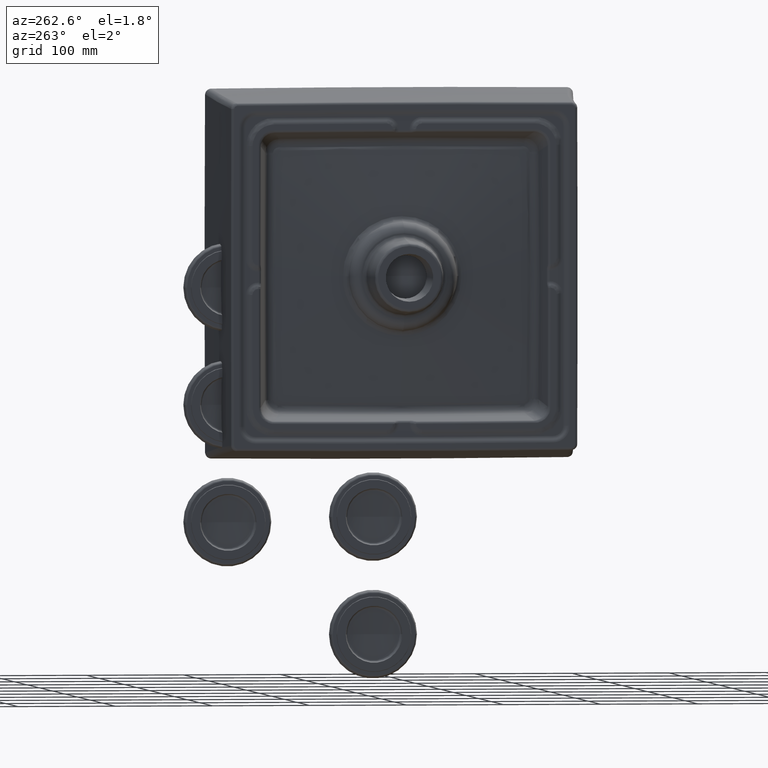
[diagram: clean part render]
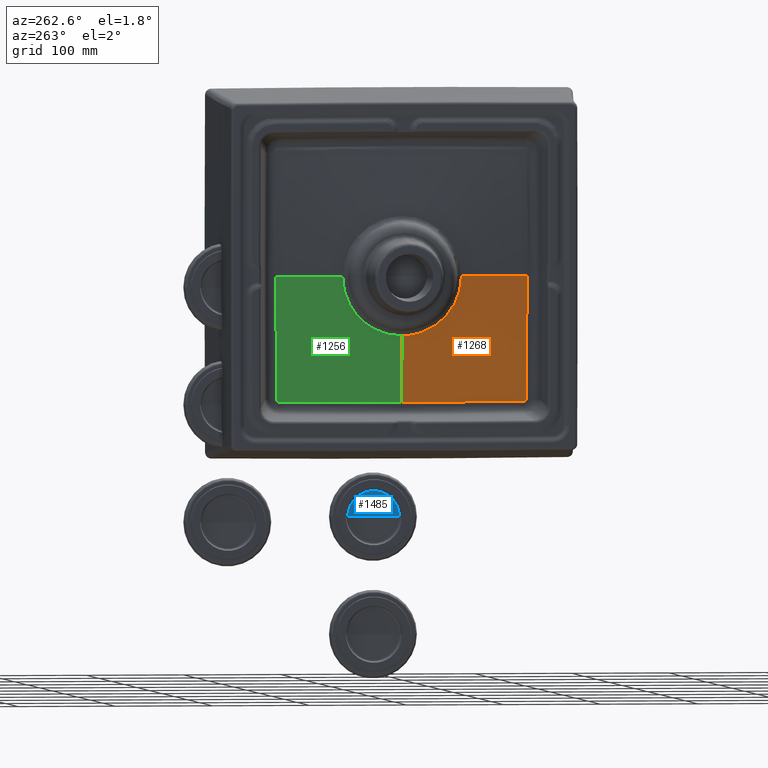
[diagram: same view with three faces highlighted in distinct colors, each labeled with its STEP entity id]
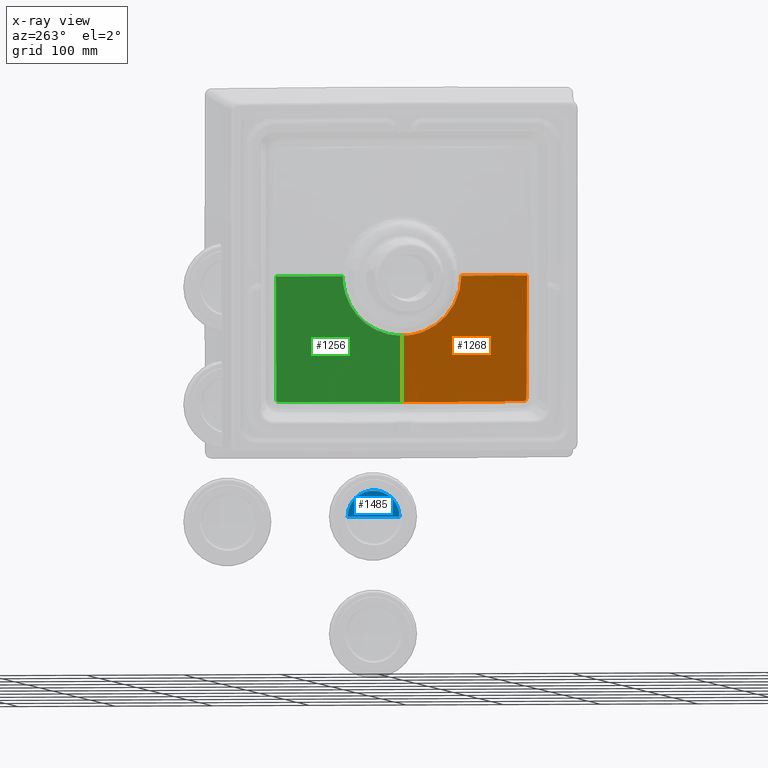
[diagram: x-ray of the same camera — body ghosted, the three highlighted faces saturated]
A machine part, auxiliary view with three faces highlighted in distinct colors.
The next image is the same camera in x-ray (body ghosted, the three faces saturated) — at least one of them is partly hidden behind the body in this view.
Their STEP definitions:

[orange] entity #1268 — the highlighted face is a freeform B-spline surface patch.
#193=B_SPLINE_SURFACE_WITH_KNOTS('',3,3,((#15323,#15324,#15325,#15326,#15327,
#15328,#15329),(#15330,#15331,#15332,#15333,#15334,#15335,#15336),(#15337,
#15338,#15339,#15340,#15341,#15342,#15343),(#15344,#15345,#15346,#15347,
#15348,#15349,#15350),(#15351,#15352,#15353,#15354,#15355,#15356,#15357),
(#15358,#15359,#15360,#15361,#15362,#15363,#15364),(#15365,#15366,#15367,
#15368,#15369,#15370,#15371),(#15372,#15373,#15374,#15375,#15376,#15377,
#15378),(#15379,#15380,#15381,#15382,#15383,#15384,#15385),(#15386,#15387,
#15388,#15389,#15390,#15391,#15392),(#15393,#15394,#15395,#15396,#15397,
#15398,#15399),(#15400,#15401,#15402,#15403,#15404,#15405,#15406),(#15407,
#15408,#15409,#15410,#15411,#15412,#15413),(#15414,#15415,#15416,#15417,
#15418,#15419,#15420),(#15421,#15422,#15423,#15424,#15425,#15426,#15427),
(#15428,#15429,#15430,#15431,#15432,#15433,#15434),(#15435,#15436,#15437,
#15438,#15439,#15440,#15441)),.UNSPECIFIED.,.F.,.F.,.F.,(4,1,1,1,1,1,1,
1,1,1,1,1,1,1,4),(4,1,1,1,4),(0.,0.125,0.1875,0.25,0.3125,0.375,0.4375,
0.5,0.5625,0.625,0.6875,0.75,0.8125,0.875,1.),(0.,0.0781348639985845,0.264745021258988,
0.637965335779795,1.),.UNSPECIFIED.);
#494=LINE('',#14064,#568);
#498=LINE('',#15213,#572);
#568=VECTOR('',#8252,1.);
#572=VECTOR('',#8266,1.);
#862=B_SPLINE_CURVE_WITH_KNOTS('',3,(#15029,#15030,#15031,#15032,#15033,
#15034,#15035,#15036,#15037,#15038,#15039,#15040,#15041,#15042,#15043,#15044,
#15045,#15046,#15047,#15048,#15049,#15050,#15051),.UNSPECIFIED.,.F.,.F.,
(4,2,2,2,2,2,2,1,2,2,2,4),(0.,0.125000000000001,0.187500000000001,0.250000000000001,
0.375000000000002,0.437500000000003,0.468750000000002,0.484375000000003,
0.492187500000002,0.500000000000002,0.750000000000001,1.),.UNSPECIFIED.);
#864=B_SPLINE_CURVE_WITH_KNOTS('',3,(#15077,#15078,#15079,#15080,#15081,
#15082,#15083,#15084,#15085,#15086,#15087,#15088),.UNSPECIFIED.,.F.,.F.,
(4,2,2,2,2,4),(0.,0.250000000000018,0.375000000000022,0.500000000000026,
0.750000000000013,1.),.UNSPECIFIED.);
#866=B_SPLINE_CURVE_WITH_KNOTS('',3,(#15170,#15171,#15172,#15173,#15174,
#15175,#15176,#15177,#15178,#15179,#15180,#15181,#15182,#15183,#15184,#15185,
#15186,#15187,#15188,#15189,#15190,#15191,#15192),.UNSPECIFIED.,.F.,.F.,
(4,2,2,2,2,1,2,2,2,2,2,4),(0.,0.250000000000004,0.375000000000007,0.437500000000008,
0.468750000000008,0.484375000000008,0.492187500000008,0.500000000000008,
0.625000000000006,0.687500000000005,0.750000000000004,1.),.UNSPECIFIED.);
#867=B_SPLINE_CURVE_WITH_KNOTS('',3,(#15215,#15216,#15217,#15218,#15219,
#15220,#15221,#15222,#15223,#15224,#15225,#15226,#15227,#15228,#15229,#15230,
#15231,#15232,#15233,#15234,#15235,#15236,#15237,#15238,#15239,#15240,#15241,
#15242,#15243,#15244,#15245,#15246,#15247,#15248,#15249,#15250,#15251,#15252,
#15253,#15254,#15255,#15256,#15257,#15258,#15259,#15260,#15261,#15262,#15263,
#15264,#15265,#15266,#15267,#15268,#15269,#15270,#15271,#15272,#15273,#15274,
#15275,#15276,#15277,#15278,#15279,#15280,#15281,#15282,#15283,#15284,#15285,
#15286,#15287,#15288,#15289,#15290,#15291,#15292,#15293,#15294,#15295,#15296,
#15297,#15298,#15299,#15300,#15301,#15302,#15303,#15304,#15305,#15306,#15307,
#15308,#15309,#15310,#15311,#15312,#15313,#15314,#15315,#15316,#15317,#15318,
#15319,#15320,#15321,#15322),.UNSPECIFIED.,.F.,.F.,(4,2,2,2,2,2,2,2,1,2,
2,2,2,2,2,2,2,2,2,2,2,1,2,2,2,2,2,2,2,2,2,2,2,2,2,2,2,2,2,1,2,2,2,2,2,2,
2,1,2,2,2,2,2,2,2,4),(0.,0.0625000000000009,0.0937500000000013,0.109375000000002,
0.117187500000002,0.125000000000002,0.156250000000002,0.171875000000003,
0.179687500000003,0.183593750000003,0.187500000000003,0.218750000000003,
0.234375000000003,0.242187500000003,0.250000000000003,0.281250000000003,
0.296875000000003,0.304687500000003,0.312500000000004,0.343750000000004,
0.359375000000004,0.367187500000004,0.371093750000004,0.375000000000005,
0.406250000000006,0.421875000000007,0.429687500000007,0.437500000000008,
0.500000000000009,0.53125000000001,0.54687500000001,0.55468750000001,0.56250000000001,
0.59375000000001,0.60937500000001,0.617187500000009,0.625000000000009,0.656250000000009,
0.671875000000008,0.679687500000008,0.683593750000008,0.687500000000008,
0.703125000000008,0.710937500000008,0.718750000000008,0.734375000000007,
0.742187500000007,0.746093750000007,0.748046875000007,0.750000000000007,
0.812500000000005,0.843750000000004,0.859375000000004,0.867187500000004,
0.875000000000003,1.),.UNSPECIFIED.);
#1268=ADVANCED_FACE('',(#1855),#193,.T.);
#1855=FACE_OUTER_BOUND('',#2303,.T.);
#2303=EDGE_LOOP('',(#3369,#3370,#3371,#3372,#3373,#3374));
#3369=ORIENTED_EDGE('',*,*,#5716,.F.);
#3370=ORIENTED_EDGE('',*,*,#5740,.T.);
#3371=ORIENTED_EDGE('',*,*,#5738,.T.);
#3372=ORIENTED_EDGE('',*,*,#5736,.T.);
#3373=ORIENTED_EDGE('',*,*,#5741,.T.);
#3374=ORIENTED_EDGE('',*,*,#5742,.T.);
#4949=VERTEX_POINT('',#14018);
#4951=VERTEX_POINT('',#14065);
#4961=VERTEX_POINT('',#15004);
#4962=VERTEX_POINT('',#15052);
#4963=VERTEX_POINT('',#15089);
#4964=VERTEX_POINT('',#15214);
#5716=EDGE_CURVE('',#4949,#4951,#494,.T.);
#5736=EDGE_CURVE('',#4962,#4961,#862,.T.);
#5738=EDGE_CURVE('',#4963,#4962,#864,.T.);
#5740=EDGE_CURVE('',#4949,#4963,#866,.T.);
#5741=EDGE_CURVE('',#4961,#4964,#498,.T.);
#5742=EDGE_CURVE('',#4964,#4951,#867,.T.);
#8252=DIRECTION('',(0.997683692681534,-0.0680238881374596,2.36368224960117E-010));
#8266=DIRECTION('',(-1.19636165809E-008,-0.0680238256960799,0.997683696938899));
#14018=CARTESIAN_POINT('',(-129.2041089773,23.54289351853,-1.492666761973E-007));
#14064=CARTESIAN_POINT('',(-110.471292410952,22.2656369891836,-2.53169894867968E-008));
#14065=CARTESIAN_POINT('',(-61.14936515815,18.90277730086,-6.540668661689E-012));
#15004=CARTESIAN_POINT('',(8.160738027421E-007,23.54287030803,-129.2041176624));
#15029=CARTESIAN_POINT('',(-123.998309175867,25.4494889271911,-128.813740244301));
#15030=CARTESIAN_POINT('',(-118.738650716854,25.2418703407142,-128.831293031154));
#15031=CARTESIAN_POINT('',(-113.515510775972,25.0530663831551,-128.86176863469));
#15032=CARTESIAN_POINT('',(-105.749254354044,24.7990120007849,-128.897304862689));
#15033=CARTESIAN_POINT('',(-103.172017560712,24.7192002927077,-128.906636850611));
#15034=CARTESIAN_POINT('',(-98.0424833767621,24.5693645635275,-128.924698205715));
#15035=CARTESIAN_POINT('',(-95.4374098163264,24.4979841847432,-128.933890216336));
#15036=CARTESIAN_POINT('',(-87.9791011381079,24.3066773863639,-128.969281734964));
#15037=CARTESIAN_POINT('',(-82.9028062030024,24.1938353240872,-128.999755579331));
#15038=CARTESIAN_POINT('',(-75.1404653583327,24.0468081645861,-129.034316026062));
#15039=CARTESIAN_POINT('',(-72.5279778405106,24.0014918215913,-129.044591872007));
#15040=CARTESIAN_POINT('',(-68.5726750103773,23.9390106796624,-129.059813641965));
#15041=CARTESIAN_POINT('',(-67.2480786923786,23.919098221286,-129.064840398804));
#15042=CARTESIAN_POINT('',(-65.2514627008223,23.8905866248061,-129.072384944221));
#15043=CARTESIAN_POINT('',(-64.250724430076,23.8766700534104,-129.076160438722));
#15044=CARTESIAN_POINT('',(-63.2462524840858,23.8632591188045,-129.079974533944));
#15045=CARTESIAN_POINT('',(-62.5757651499783,23.8544304725721,-129.082530998082));
#15046=CARTESIAN_POINT('',(-62.1953237461664,23.849498897937,-129.083988526621));
#15047=CARTESIAN_POINT('',(-52.5821002589686,23.7264319641183,-129.1210200709));
#15048=CARTESIAN_POINT('',(-42.8857124058192,23.6478571665887,-129.136754986282));
#15049=CARTESIAN_POINT('',(-22.4115636500975,23.5558191170307,-129.177895308486));
#15050=CARTESIAN_POINT('',(-11.6284164271326,23.542872158216,-129.204074890052));
#15051=CARTESIAN_POINT('',(1.71553299383955E-014,23.5428750524567,-129.204117338916));
#15052=CARTESIAN_POINT('',(-123.9983091195,25.44949035023,-128.8137401862));
#15077=CARTESIAN_POINT('',(-128.675361975935,25.4616570055894,-124.157117524426));
#15078=CARTESIAN_POINT('',(-128.669582215087,25.4938396295691,-125.028809718736));
#15079=CARTESIAN_POINT('',(-128.605305549557,25.5190556669247,-125.769579379898));
#15080=CARTESIAN_POINT('',(-128.41934529131,25.5479807448387,-126.733915729918));
#15081=CARTESIAN_POINT('',(-128.357832822342,25.5548229495542,-126.979894221398));
#15082=CARTESIAN_POINT('',(-128.143767959985,25.5691446030683,-127.583552479931));
#15083=CARTESIAN_POINT('',(-128.04404202234,25.5737392229814,-127.808818294213));
#15084=CARTESIAN_POINT('',(-127.54534003317,25.573679760562,-128.337698062424));
#15085=CARTESIAN_POINT('',(-126.951765777905,25.5554081715522,-128.493216046515));
#15086=CARTESIAN_POINT('',(-125.657280772601,25.5128275590314,-128.743822767268));
#15087=CARTESIAN_POINT('',(-124.888055680051,25.4846089797952,-128.810731684767));
#15088=CARTESIAN_POINT('',(-123.998309175867,25.4494889271911,-128.813740244301));
#15089=CARTESIAN_POINT('',(-128.6753626393,25.46164167569,-124.1571180948));
#15170=CARTESIAN_POINT('',(-129.204110269216,23.5428745704317,-1.49266679086851E-007));
#15171=CARTESIAN_POINT('',(-129.204160881944,23.5428780215863,-11.6599699269367));
#15172=CARTESIAN_POINT('',(-129.175428481155,23.5750456398596,-22.4661338570689));
#15173=CARTESIAN_POINT('',(-129.138910417021,23.6710085139017,-37.8481373533838));
#15174=CARTESIAN_POINT('',(-129.127184297727,23.7109460119658,-42.8363944254641));
#15175=CARTESIAN_POINT('',(-129.106692190943,23.7827538241014,-50.1493035276718));
#15176=CARTESIAN_POINT('',(-129.099125103895,23.8086744925741,-52.5584220802422));
#15177=CARTESIAN_POINT('',(-129.08658039861,23.8505357695891,-56.1333135166864));
#15178=CARTESIAN_POINT('',(-129.082233709899,23.864986151004,-57.31849699022));
#15179=CARTESIAN_POINT('',(-129.07521881547,23.8874090567091,-59.086813963976));
#15180=CARTESIAN_POINT('',(-129.071587880053,23.8988073493684,-59.9686071201746));
#15181=CARTESIAN_POINT('',(-129.067736374875,23.9104863616266,-60.8468924758026));
#15182=CARTESIAN_POINT('',(-129.065116719783,23.918334802615,-61.4316411903759));
#15183=CARTESIAN_POINT('',(-129.063990092035,23.9216783467855,-61.6788717948925));
#15184=CARTESIAN_POINT('',(-129.037258121641,23.9998540605586,-67.3969604025564));
#15185=CARTESIAN_POINT('',(-129.013766350533,24.0850412710948,-72.6719878997851));
#15186=CARTESIAN_POINT('',(-128.970134507269,24.2306097243252,-80.438678815544));
#15187=CARTESIAN_POINT('',(-128.954048557338,24.2821067342563,-83.0023913673381));
#15188=CARTESIAN_POINT('',(-128.919940452974,24.3911343143178,-88.0796617497526));
#15189=CARTESIAN_POINT('',(-128.902121737546,24.4473836250668,-90.5414755984068));
#15190=CARTESIAN_POINT('',(-128.819815751502,24.7568198602366,-103.239065917616));
#15191=CARTESIAN_POINT('',(-128.746992201101,25.0727592580888,-113.621431549697));
#15192=CARTESIAN_POINT('',(-128.675361975935,25.4616570055894,-124.157117524426));
#15213=CARTESIAN_POINT('',(8.160738027421E-007,23.54287030803,-129.2041176624));
#15214=CARTESIAN_POINT('',(2.56854969141E-012,18.90277782304,-61.14936512254));
#15215=CARTESIAN_POINT('',(1.2209212320652E-014,18.9027783081714,-61.1493650894629));
#15216=CARTESIAN_POINT('',(-1.89202177800325,18.9027710424781,-61.1492585259609));
#15217=CARTESIAN_POINT('',(-3.84559544877732,18.9008279023936,-61.0609811108095));
#15218=CARTESIAN_POINT('',(-6.8481874819641,18.8951456682172,-60.7736376534429));
#15219=CARTESIAN_POINT('',(-7.86103905887691,18.8927916315554,-60.6520149157375));
#15220=CARTESIAN_POINT('',(-9.39529820682029,18.8885993724952,-60.427815555223));
#15221=CARTESIAN_POINT('',(-9.90921134733114,18.8870918334936,-60.3461204645753));
#15222=CARTESIAN_POINT('',(-10.6834134552263,18.8846696626458,-60.2127502718086));
#15223=CARTESIAN_POINT('',(-10.9420359912187,18.8838354669649,-60.1664888872459));
#15224=CARTESIAN_POINT('',(-11.4603206056289,18.8821142436491,-60.0702920098491));
#15225=CARTESIAN_POINT('',(-11.7537436297632,18.8811087249832,-60.0136333883391));
#15226=CARTESIAN_POINT('',(-12.8856663651366,18.877136007077,-59.7882231876972));
#15227=CARTESIAN_POINT('',(-13.8276853031871,18.8735390884318,-59.5792656401778));
#15228=CARTESIAN_POINT('',(-15.2912158493528,18.8675366701749,-59.2152044770804));
#15229=CARTESIAN_POINT('',(-15.7874662377693,18.8654348703624,-59.0854056068563));
#15230=CARTESIAN_POINT('',(-16.5438270925663,18.8621350561224,-58.8770114953867));
#15231=CARTESIAN_POINT('',(-16.9250027692566,18.8604483895394,-58.7693897885659));
#15232=CARTESIAN_POINT('',(-17.3105441486263,18.8587075832438,-58.6564320858475));
#15233=CARTESIAN_POINT('',(-17.5685270456755,18.8575351385412,-58.5799186344751));
#15234=CARTESIAN_POINT('',(-17.7312714763167,18.8567898071111,-58.5309485329577));
#15235=CARTESIAN_POINT('',(-18.6012473183856,18.8527856026352,-58.2666445897006));
#15236=CARTESIAN_POINT('',(-19.4641365830383,18.8486673473141,-57.9878249433266));
#15237=CARTESIAN_POINT('',(-20.8843091474251,18.8416861358379,-57.4865454390048));
#15238=CARTESIAN_POINT('',(-21.3786404803298,18.8392254657991,-57.3055678390004));
#15239=CARTESIAN_POINT('',(-22.1501515725222,18.8353425136129,-57.0107319171594));
#15240=CARTESIAN_POINT('',(-22.4123217865777,18.8340162378999,-56.9085556228797));
#15241=CARTESIAN_POINT('',(-22.9463974411717,18.8313016064167,-56.6959509723167));
#15242=CARTESIAN_POINT('',(-23.2629900325091,18.8296841324015,-56.5669786712532));
#15243=CARTESIAN_POINT('',(-24.4227019612674,18.8237381174836,-56.0857294250386));
#15244=CARTESIAN_POINT('',(-25.3512068474641,18.818950886789,-55.6733147159994));
#15245=CARTESIAN_POINT('',(-26.6911696118953,18.8120264337842,-55.0376503655113));
#15246=CARTESIAN_POINT('',(-27.1386241192828,18.8097339907333,-54.8189413894887));
#15247=CARTESIAN_POINT('',(-27.810596899884,18.8063240366658,-54.4801834385104));
#15248=CARTESIAN_POINT('',(-28.0347194370456,18.8051921736333,-54.3654816189762));
#15249=CARTESIAN_POINT('',(-28.4831567552797,18.8029389214631,-54.1324347343445));
#15250=CARTESIAN_POINT('',(-28.6765188590226,18.8019714428934,-54.0306722238945));
#15251=CARTESIAN_POINT('',(-29.9531546649729,18.7956234380558,-53.3467287081956));
#15252=CARTESIAN_POINT('',(-30.8911164050713,18.7911415312198,-52.8074119955594));
#15253=CARTESIAN_POINT('',(-32.1806951283769,18.7852691508241,-52.0257994125856));
#15254=CARTESIAN_POINT('',(-32.5910071810463,18.7834532745137,-51.7698089497498));
#15255=CARTESIAN_POINT('',(-33.1781866456384,18.7809352477523,-51.39445571112));
#15256=CARTESIAN_POINT('',(-33.4647046685738,18.7797276735674,-51.2089356102118));
#15257=CARTESIAN_POINT('',(-33.7408109966203,18.7785959692101,-51.0269748865108));
#15258=CARTESIAN_POINT('',(-33.9225899508107,18.777858213936,-50.9064936775656));
#15259=CARTESIAN_POINT('',(-33.9879923048431,18.7775944545639,-50.8629828091874));
#15260=CARTESIAN_POINT('',(-35.0045383546011,18.7735534808973,-50.1815568912249));
#15261=CARTESIAN_POINT('',(-35.8596115842043,18.7705218838466,-49.573495355509));
#15262=CARTESIAN_POINT('',(-37.0727642265064,18.7667736086999,-48.6659851207649));
#15263=CARTESIAN_POINT('',(-37.4655852726327,18.7656574127479,-48.364239241551));
#15264=CARTESIAN_POINT('',(-38.0379867475977,18.7641781472384,-47.9137130767636));
#15265=CARTESIAN_POINT('',(-38.2259828095383,18.7637175659292,-47.763886060235));
#15266=CARTESIAN_POINT('',(-38.5964582026721,18.762860643988,-47.4650832865852));
#15267=CARTESIAN_POINT('',(-38.7541335135935,18.7625146196128,-47.3365931056822));
#15268=CARTESIAN_POINT('',(-40.5952894588006,18.7587803755279,-45.8159534721037));
#15269=CARTESIAN_POINT('',(-42.0870353322361,18.7578349486657,-44.4395878993229));
#15270=CARTESIAN_POINT('',(-44.1370433012557,18.759598550178,-42.3703437918351));
#15271=CARTESIAN_POINT('',(-44.8193032544021,18.760737557214,-41.6491240512869));
#15272=CARTESIAN_POINT('',(-45.8360338475655,18.7632475336096,-40.5182112318674));
#15273=CARTESIAN_POINT('',(-46.1738256214384,18.7642176757564,-40.1330638149455));
#15274=CARTESIAN_POINT('',(-46.6781222973077,18.7658689918021,-39.5428870596131));
#15275=CARTESIAN_POINT('',(-46.8458220856594,18.7664521069314,-39.3440858768608));
#15276=CARTESIAN_POINT('',(-47.1802970301252,18.7676829091281,-38.9423049235958));
#15277=CARTESIAN_POINT('',(-47.3669050115413,18.7684116574159,-38.7148566632431));
#15278=CARTESIAN_POINT('',(-48.0989939635824,18.7714042198221,-37.8117909621835));
#15279=CARTESIAN_POINT('',(-48.6919915251018,18.7742547066509,-37.0464199612636));
#15280=CARTESIAN_POINT('',(-49.5851058294341,18.7791978576711,-35.8298629447103));
#15281=CARTESIAN_POINT('',(-49.8834074082226,18.7809566800812,-35.4129348374617));
#15282=CARTESIAN_POINT('',(-50.3307793657708,18.7837580597641,-34.7699991752914));
#15283=CARTESIAN_POINT('',(-50.479889581916,18.7847190336208,-34.5527640554882));
#15284=CARTESIAN_POINT('',(-50.7779155582789,18.7866946244062,-34.1123847103453));
#15285=CARTESIAN_POINT('',(-50.9577256557417,18.7879254673334,-33.8422705444441));
#15286=CARTESIAN_POINT('',(-51.5469309635364,18.7920497871241,-32.9464700696579));
#15287=CARTESIAN_POINT('',(-52.0431002434051,18.7958176411273,-32.1600126257232));
#15288=CARTESIAN_POINT('',(-52.8112779044613,18.8021558444635,-30.8678664330162));
#15289=CARTESIAN_POINT('',(-53.0713082905006,18.804382865744,-30.4184095480132));
#15290=CARTESIAN_POINT('',(-53.4655207525132,18.8078915331016,-29.7151977557972));
#15291=CARTESIAN_POINT('',(-53.6636674856496,18.8096878855749,-29.3563360845718));
#15292=CARTESIAN_POINT('',(-53.8630293637104,18.8115464992112,-28.9864289825226));
#15293=CARTESIAN_POINT('',(-53.9961680070469,18.8127993194633,-28.7373520957653));
#15294=CARTESIAN_POINT('',(-54.0869687734057,18.8136637770696,-28.5657056832261));
#15295=CARTESIAN_POINT('',(-54.3002837970261,18.8157085583942,-28.1599581249398));
#15296=CARTESIAN_POINT('',(-54.4994511763781,18.8176562752205,-27.7744085694549));
#15297=CARTESIAN_POINT('',(-54.8351613345343,18.8210387809439,-27.1014414973042));
#15298=CARTESIAN_POINT('',(-54.9532064450857,18.8222430745161,-26.8613370354402));
#15299=CARTESIAN_POINT('',(-55.2003981195176,18.8248036837147,-26.3489416856826));
#15300=CARTESIAN_POINT('',(-55.3123411189353,18.8259762854139,-26.1137066799734));
#15301=CARTESIAN_POINT('',(-55.7660637969081,18.8308215914027,-25.1363847846583));
#15302=CARTESIAN_POINT('',(-56.0118558003654,18.8335466750719,-24.577041761287));
#15303=CARTESIAN_POINT('',(-56.3086275106225,18.8368923770332,-23.8835491502351));
#15304=CARTESIAN_POINT('',(-56.3955143880229,18.8378839289059,-23.6766037111834));
#15305=CARTESIAN_POINT('',(-56.5089779580817,18.8391873481637,-23.4031296909325));
#15306=CARTESIAN_POINT('',(-56.5614883530573,18.8397930768554,-23.2756258958062));
#15307=CARTESIAN_POINT('',(-56.6078479393594,18.8403300928891,-23.1620635341132));
#15308=CARTESIAN_POINT('',(-56.6374048069227,18.8406728591885,-23.0894620286959));
#15309=CARTESIAN_POINT('',(-56.6375973512527,18.8406749624351,-23.0890749919798));
#15310=CARTESIAN_POINT('',(-57.5401018033618,18.8511626550294,-20.8599224800499));
#15311=CARTESIAN_POINT('',(-58.2306803788788,18.8599583298811,-18.7914932860299));
#15312=CARTESIAN_POINT('',(-59.0617107514661,18.8711608826243,-15.8781415657663));
#15313=CARTESIAN_POINT('',(-59.3043880376425,18.874563608955,-14.9383273489363));
#15314=CARTESIAN_POINT('',(-59.6244904572532,18.8791813092249,-13.579923727183));
#15315=CARTESIAN_POINT('',(-59.7238651391988,18.8806394836998,-13.1356652860149));
#15316=CARTESIAN_POINT('',(-59.8628207744046,18.8827065376374,-12.4825512459882));
#15317=CARTESIAN_POINT('',(-59.9074544669367,18.8833755210207,-12.267058271554));
#15318=CARTESIAN_POINT('',(-59.9934937682133,18.884673649433,-11.8405657432891));
#15319=CARTESIAN_POINT('',(-60.0271753647885,18.8851847169946,-11.6700113563442));
#15320=CARTESIAN_POINT('',(-60.836105242619,18.8975510106159,-7.43420144258678));
#15321=CARTESIAN_POINT('',(-61.1491475929925,18.9027634788666,-3.78533501289447));
#15322=CARTESIAN_POINT('',(-61.1493650894696,18.9027783081719,1.72205492865916E-014));
#15323=CARTESIAN_POINT('',(1.208589932638E-014,18.78331224954,-59.39719622956));
#15324=CARTESIAN_POINT('',(1.227275760902E-014,18.964712032,-62.05772637226));
#15325=CARTESIAN_POINT('',(1.291200424398E-014,19.57935045082,-71.07242318162));
#15326=CARTESIAN_POINT('',(1.447943084615E-014,21.06046614237,-92.79545332432));
#15327=CARTESIAN_POINT('',(1.678285450035E-014,23.200690449,-124.1854098215));
#15328=CARTESIAN_POINT('',(1.863157136749E-014,24.90767611926,-149.2211996521));
#15329=CARTESIAN_POINT('',(1.954336519244E-014,25.7481845168,-161.5486561493));
#15330=CARTESIAN_POINT('',(-3.94480997401,18.78331224954,-59.39719622956));
#15331=CARTESIAN_POINT('',(-4.133402904647,18.964712032,-62.05772637226));
#15332=CARTESIAN_POINT('',(-4.773927293065,19.57935045082,-71.07242318162));
#15333=CARTESIAN_POINT('',(-6.32410829849,21.06046614237,-92.79545332432));
#15334=CARTESIAN_POINT('',(-8.573658486577,23.200690449,-124.1854098215));
#15335=CARTESIAN_POINT('',(-10.37070326619,24.90767611926,-149.2211996521));
#15336=CARTESIAN_POINT('',(-11.25592699698,25.7481845168,-161.5486561493));
#15337=CARTESIAN_POINT('',(-9.865357098318,18.77968560482,-58.9210537611));
#15338=CARTESIAN_POINT('',(-10.33766820558,18.96042756014,-61.58225173641));
#15339=CARTESIAN_POINT('',(-11.9413812946,19.57284431688,-70.59870382594));
#15340=CARTESIAN_POINT('',(-15.82088373896,21.04857737469,-92.32373261343));
#15341=CARTESIAN_POINT('',(-21.44816421215,23.18094756705,-123.7134062355));
#15342=CARTESIAN_POINT('',(-25.94277990845,24.88161894013,-148.7480227158));
#15343=CARTESIAN_POINT('',(-28.15673344771,25.71901194108,-161.0747787143));
#15344=CARTESIAN_POINT('',(-17.58458404354,18.77190571877,-57.3056626659));
#15345=CARTESIAN_POINT('',(-18.43887138892,18.95127707692,-59.95515309207));
#15346=CARTESIAN_POINT('',(-21.33806074091,19.5590610624,-68.93096455679));
#15347=CARTESIAN_POINT('',(-28.34504630006,21.02360150226,-90.55364924965));
#15348=CARTESIAN_POINT('',(-38.49992373515,23.13970282414,-121.7890817158));
#15349=CARTESIAN_POINT('',(-46.60829273293,24.82733036925,-146.6987163644));
#15350=CARTESIAN_POINT('',(-50.60197833963,25.65829194183,-158.9636782619));
#15351=CARTESIAN_POINT('',(-23.24126383228,18.76575546308,-55.59638972384));
#15352=CARTESIAN_POINT('',(-24.38358614438,18.94405955812,-58.22478705132));
#15353=CARTESIAN_POINT('',(-28.25895139345,19.54823271025,-67.12848720438));
#15354=CARTESIAN_POINT('',(-37.61943800793,21.00406684561,-88.57444187231));
#15355=CARTESIAN_POINT('',(-51.17693819347,23.10755646113,-119.5502005935));
#15356=CARTESIAN_POINT('',(-61.99977628336,24.78509951565,-144.2513746416));
#15357=CARTESIAN_POINT('',(-67.3301294121,25.61109218838,-156.4135171836));
#15358=CARTESIAN_POINT('',(-28.71542538294,18.76041609949,-53.37276370702));
#15359=CARTESIAN_POINT('',(-30.14564669956,18.93782361144,-55.95963105523));
#15360=CARTESIAN_POINT('',(-34.99605643071,19.5389577411,-64.7222669938));
#15361=CARTESIAN_POINT('',(-46.70414408521,20.98747950208,-85.82669422456));
#15362=CARTESIAN_POINT('',(-63.65108696851,23.08042795045,-116.3066232813));
#15363=CARTESIAN_POINT('',(-77.17638283504,24.74957865091,-140.6116093047));
#15364=CARTESIAN_POINT('',(-83.83729551733,25.57144088617,-152.5785774214));
#15365=CARTESIAN_POINT('',(-33.95017658899,18.75694389448,-50.61117003982));
#15366=CARTESIAN_POINT('',(-35.66357757765,18.93382639331,-53.12442307136));
#15367=CARTESIAN_POINT('',(-41.47237270474,19.53317264452,-61.63780220841));
#15368=CARTESIAN_POINT('',(-55.48471569907,20.97740754167,-82.14244947191));
#15369=CARTESIAN_POINT('',(-75.75374453361,23.06423708255,-111.7569899983));
#15370=CARTESIAN_POINT('',(-91.92623708076,24.72856244454,-135.3722070612));
#15371=CARTESIAN_POINT('',(-99.89030030165,25.54805580723,-146.9995945268));
#15372=CARTESIAN_POINT('',(-38.8660512052,18.75617028263,-47.27431578076));
#15373=CARTESIAN_POINT('',(-40.84760298632,18.93305690519,-49.6671857698));
#15374=CARTESIAN_POINT('',(-47.56321443409,19.5324050061,-57.77362142142));
#15375=CARTESIAN_POINT('',(-63.75269349115,20.97667012986,-77.30203409281));
#15376=CARTESIAN_POINT('',(-87.15607194711,23.06363160116,-105.5122758719));
#15377=CARTESIAN_POINT('',(-105.8248185741,24.72812703096,-128.0094623482));
#15378=CARTESIAN_POINT('',(-115.0175527993,25.5477123728,-139.0865975073));
#15379=CARTESIAN_POINT('',(-43.35128594238,18.75832478778,-43.34207153976));
#15380=CARTESIAN_POINT('',(-45.56670436879,18.93577022744,-45.55572212046));
#15381=CARTESIAN_POINT('',(-53.07268559059,19.53700835933,-53.05667366135));
#15382=CARTESIAN_POINT('',(-71.1577333605,20.98583720016,-71.13383182826));
#15383=CARTESIAN_POINT('',(-97.28739269233,23.07941953816,-97.25811022114));
#15384=CARTESIAN_POINT('',(-118.1266965487,24.7492139374,-118.0949264291));
#15385=CARTESIAN_POINT('',(-128.3876999648,25.57141073746,-128.3549385975));
#15386=CARTESIAN_POINT('',(-47.28540416674,18.7625617903,-38.86122216535));
#15387=CARTESIAN_POINT('',(-49.67957964282,18.9409109295,-40.84116397918));
#15388=CARTESIAN_POINT('',(-57.7897389137,19.54522069743,-47.55218339952));
#15389=CARTESIAN_POINT('',(-77.32401061207,21.00143148774,-63.734436965));
#15390=CARTESIAN_POINT('',(-105.538270695,23.1056171418,-87.13285969011));
#15391=CARTESIAN_POINT('',(-128.0373153115,24.78382167817,-105.7993143883));
#15392=CARTESIAN_POINT('',(-139.1151910919,25.61015372803,-114.9911350255));
#15393=CARTESIAN_POINT('',(-50.62199405252,18.76747276717,-33.95068898617));
#15394=CARTESIAN_POINT('',(-53.1358316006,18.94675513859,-35.66317935612));
#15395=CARTESIAN_POINT('',(-61.65088489666,19.55423824644,-41.46936619781));
#15396=CARTESIAN_POINT('',(-82.15818035839,21.01807234186,-55.47758417612));
#15397=CARTESIAN_POINT('',(-111.7745538685,23.13318970817,-75.74376050859));
#15398=CARTESIAN_POINT('',(-135.3906187995,24.82005108025,-91.91493600163));
#15399=CARTESIAN_POINT('',(-147.0183443298,25.65063776831,-99.8784746175));
#15400=CARTESIAN_POINT('',(-53.38218898961,18.77211333774,-28.7202630113));
#15401=CARTESIAN_POINT('',(-55.96904742899,18.95217368823,-30.15044077201));
#15402=CARTESIAN_POINT('',(-64.73165759562,19.56229664328,-35.00072662077));
#15403=CARTESIAN_POINT('',(-85.83604241046,21.03247811985,-46.70862510687));
#15404=CARTESIAN_POINT('',(-116.315938291,23.15672230784,-63.6554533594));
#15405=CARTESIAN_POINT('',(-140.6209063716,24.85083187456,-77.18070771629));
#15406=CARTESIAN_POINT('',(-152.5878667552,25.68498345981,-83.84160641264));
#15407=CARTESIAN_POINT('',(-55.60374373004,18.77609715534,-23.2486065663));
#15408=CARTESIAN_POINT('',(-58.23181276377,18.95673409523,-24.39162712654));
#15409=CARTESIAN_POINT('',(-67.13457183763,19.56880745235,-28.26899625626));
#15410=CARTESIAN_POINT('',(-88.57903503321,21.04368547862,-37.63266695748));
#15411=CARTESIAN_POINT('',(-119.5537560425,23.17471981418,-51.19239784342));
#15412=CARTESIAN_POINT('',(-144.2544472841,24.87425206401,-62.01628166435));
#15413=CARTESIAN_POINT('',(-156.4163966937,25.71107465649,-67.34705485806));
#15414=CARTESIAN_POINT('',(-57.31055978954,18.77928170257,-17.59260599949));
#15415=CARTESIAN_POINT('',(-59.95966697724,18.96030824249,-18.4480424362));
#15416=CARTESIAN_POINT('',(-68.93438259968,19.57369497448,-21.35052150551));
#15417=CARTESIAN_POINT('',(-90.55533679427,21.05174725719,-28.36271300031));
#15418=CARTESIAN_POINT('',(-121.7895736499,23.18741111576,-38.52120488384));
#15419=CARTESIAN_POINT('',(-146.6986535246,24.89066941862,-46.63125754802));
#15420=CARTESIAN_POINT('',(-158.9633938498,25.72933105042,-50.62561707065));
#15421=CARTESIAN_POINT('',(-58.92268495691,18.78237478046,-9.872050376296));
#15422=CARTESIAN_POINT('',(-61.58366918965,18.96371494159,-10.34559666377));
#15423=CARTESIAN_POINT('',(-70.59951311796,19.57815513682,-11.95283195888));
#15424=CARTESIAN_POINT('',(-92.32358801768,21.05877283051,-15.83787600433));
#15425=CARTESIAN_POINT('',(-123.7126112428,23.19822767549,-21.46895848805));
#15426=CARTESIAN_POINT('',(-148.7469272161,24.90456828664,-25.9653351082));
#15427=CARTESIAN_POINT('',(-161.073563508,25.74475512934,-28.17999113487));
#15428=CARTESIAN_POINT('',(-59.39719622956,18.78331224954,-3.948267161249));
#15429=CARTESIAN_POINT('',(-62.05772637226,18.964712032,-4.137514323041));
#15430=CARTESIAN_POINT('',(-71.07242318162,19.57935045082,-4.779901455345));
#15431=CARTESIAN_POINT('',(-92.79545332432,21.06046614237,-6.333007017693));
#15432=CARTESIAN_POINT('',(-124.1854098215,23.200690449,-8.58455499029));
#15433=CARTESIAN_POINT('',(-149.2211996521,24.90767611926,-10.38252329524));
#15434=CARTESIAN_POINT('',(-161.5486561493,25.7481845168,-11.26811502328));
#15435=CARTESIAN_POINT('',(-59.39719622956,18.78331224954,1.716840078178E-014));
#15436=CARTESIAN_POINT('',(-62.05772637226,18.964712032,1.724719731816E-014));
#15437=CARTESIAN_POINT('',(-71.07242318162,19.57935045082,1.752036266276E-014));
#15438=CARTESIAN_POINT('',(-92.79545332432,21.06046614237,1.820591864479E-014));
#15439=CARTESIAN_POINT('',(-124.1854098215,23.200690449,1.923544268149E-014));
#15440=CARTESIAN_POINT('',(-149.2211996521,24.90767611926,2.006825473294E-014));
#15441=CARTESIAN_POINT('',(-161.5486561493,25.7481845168,2.047983976536E-014));

[blue] entity #1485 — the highlighted spherical surface has radius 192.302 mm.
#115=SPHERICAL_SURFACE('',#7526,192.301587301587);
#1485=ADVANCED_FACE('',(#2065),#115,.F.);
#2065=FACE_OUTER_BOUND('',#2527,.T.);
#2527=EDGE_LOOP('',(#4393,#4394,#4395));
#4393=ORIENTED_EDGE('',*,*,#6243,.F.);
#4394=ORIENTED_EDGE('',*,*,#6242,.T.);
#4395=ORIENTED_EDGE('',*,*,#6238,.T.);
#5257=VERTEX_POINT('',#25132);
#5258=VERTEX_POINT('',#25134);
#5259=VERTEX_POINT('',#25142);
#6238=EDGE_CURVE('',#5258,#5257,#6809,.T.);
#6242=EDGE_CURVE('',#5259,#5258,#6813,.T.);
#6243=EDGE_CURVE('',#5259,#5257,#6814,.T.);
#6809=CIRCLE('',#7516,26.7047300364021);
#6813=CIRCLE('',#7523,192.301587301587);
#6814=CIRCLE('',#7524,192.301587301587);
#7516=AXIS2_PLACEMENT_3D('',#25133,#8939,#8940);
#7523=AXIS2_PLACEMENT_3D('',#25141,#8953,#8954);
#7524=AXIS2_PLACEMENT_3D('',#25143,#8955,#8956);
#7526=AXIS2_PLACEMENT_3D('',#25145,#8959,#8960);
#8939=DIRECTION('',(0.,-1.,0.));
#8940=DIRECTION('',(0.,0.,-1.));
#8953=DIRECTION('',(-1.,0.,0.));
#8954=DIRECTION('',(0.,1.,0.));
#8955=DIRECTION('',(1.,0.,0.));
#8956=DIRECTION('',(0.,1.,0.));
#8959=DIRECTION('',(0.,1.,-5.41250907073242E-017));
#8960=DIRECTION('',(0.,0.,-1.));
#25132=CARTESIAN_POINT('',(-246.89719743439,50.2709505729654,52.025837402982));
#25133=CARTESIAN_POINT('',(-246.89719743439,50.2709505729654,25.3211073665799));
#25134=CARTESIAN_POINT('',(-246.89719743439,50.2709505729654,-1.38362266982229));
#25141=CARTESIAN_POINT('',(-246.89719743439,-140.167380317627,25.3211073665799));
#25142=CARTESIAN_POINT('',(-246.89719743439,52.1342069839601,25.3211073665799));
#25143=CARTESIAN_POINT('',(-246.89719743439,-140.167380317627,25.3211073665799));
#25145=CARTESIAN_POINT('',(-246.89719743439,-140.167380317627,25.3211073665799));

[green] entity #1256 — the highlighted face is a freeform B-spline surface patch.
#184=B_SPLINE_SURFACE_WITH_KNOTS('',3,3,((#14175,#14176,#14177,#14178,#14179,
#14180,#14181,#14182,#14183,#14184,#14185,#14186,#14187,#14188,#14189,#14190,
#14191,#14192,#14193,#14194),(#14195,#14196,#14197,#14198,#14199,#14200,
#14201,#14202,#14203,#14204,#14205,#14206,#14207,#14208,#14209,#14210,#14211,
#14212,#14213,#14214),(#14215,#14216,#14217,#14218,#14219,#14220,#14221,
#14222,#14223,#14224,#14225,#14226,#14227,#14228,#14229,#14230,#14231,#14232,
#14233,#14234),(#14235,#14236,#14237,#14238,#14239,#14240,#14241,#14242,
#14243,#14244,#14245,#14246,#14247,#14248,#14249,#14250,#14251,#14252,#14253,
#14254),(#14255,#14256,#14257,#14258,#14259,#14260,#14261,#14262,#14263,
#14264,#14265,#14266,#14267,#14268,#14269,#14270,#14271,#14272,#14273,#14274),
(#14275,#14276,#14277,#14278,#14279,#14280,#14281,#14282,#14283,#14284,
#14285,#14286,#14287,#14288,#14289,#14290,#14291,#14292,#14293,#14294),
(#14295,#14296,#14297,#14298,#14299,#14300,#14301,#14302,#14303,#14304,
#14305,#14306,#14307,#14308,#14309,#14310,#14311,#14312,#14313,#14314),
(#14315,#14316,#14317,#14318,#14319,#14320,#14321,#14322,#14323,#14324,
#14325,#14326,#14327,#14328,#14329,#14330,#14331,#14332,#14333,#14334),
(#14335,#14336,#14337,#14338,#14339,#14340,#14341,#14342,#14343,#14344,
#14345,#14346,#14347,#14348,#14349,#14350,#14351,#14352,#14353,#14354),
(#14355,#14356,#14357,#14358,#14359,#14360,#14361,#14362,#14363,#14364,
#14365,#14366,#14367,#14368,#14369,#14370,#14371,#14372,#14373,#14374),
(#14375,#14376,#14377,#14378,#14379,#14380,#14381,#14382,#14383,#14384,
#14385,#14386,#14387,#14388,#14389,#14390,#14391,#14392,#14393,#14394),
(#14395,#14396,#14397,#14398,#14399,#14400,#14401,#14402,#14403,#14404,
#14405,#14406,#14407,#14408,#14409,#14410,#14411,#14412,#14413,#14414),
(#14415,#14416,#14417,#14418,#14419,#14420,#14421,#14422,#14423,#14424,
#14425,#14426,#14427,#14428,#14429,#14430,#14431,#14432,#14433,#14434)),
 .UNSPECIFIED.,.F.,.F.,.F.,(4,3,1,1,1,3,4),(4,1,1,1,1,1,1,1,1,1,1,1,1,1,
3,4),(0.,0.00980392156862745,0.0864085331200671,0.269365806074612,0.635280351983702,
0.990196078431373,1.),(0.,0.12499920851969,0.187498812779535,0.24999841703938,
0.312498021299225,0.37499762555907,0.437497229818915,0.49999683407876,0.562496438338605,
0.62499604259845,0.687495646858295,0.74999525111814,0.812494855377985,0.87499445963783,
0.99999366815752,1.),.UNSPECIFIED.);
#493=LINE('',#14062,#567);
#494=LINE('',#14064,#568);
#567=VECTOR('',#8251,1.);
#568=VECTOR('',#8252,1.);
#824=B_SPLINE_CURVE_WITH_KNOTS('',3,(#12820,#12821,#12822,#12823,#12824,
#12825,#12826,#12827,#12828,#12829,#12830,#12831,#12832,#12833,#12834,#12835),
 .UNSPECIFIED.,.F.,.F.,(4,2,2,2,2,2,2,4),(0.,0.249999999999976,0.374999999999969,
0.437499999999967,0.499999999999966,0.624999999999977,0.749999999999988,
1.),.UNSPECIFIED.);
#826=B_SPLINE_CURVE_WITH_KNOTS('',3,(#12909,#12910,#12911,#12912,#12913,
#12914,#12915,#12916,#12917,#12918,#12919,#12920,#12921,#12922,#12923,#12924,
#12925,#12926,#12927,#12928,#12929,#12930,#12931),.UNSPECIFIED.,.F.,.F.,
(4,2,2,2,2,1,2,2,2,2,2,4),(0.,0.250000000000002,0.375000000000002,0.437500000000003,
0.468750000000003,0.484375000000003,0.492187500000003,0.500000000000003,
0.625000000000002,0.687500000000002,0.750000000000001,1.),.UNSPECIFIED.);
#851=B_SPLINE_CURVE_WITH_KNOTS('',3,(#14019,#14020,#14021,#14022,#14023,
#14024,#14025,#14026,#14027,#14028,#14029,#14030,#14031,#14032,#14033,#14034,
#14035,#14036,#14037,#14038,#14039,#14040,#14041),.UNSPECIFIED.,.F.,.F.,
(4,2,2,2,2,2,2,1,2,2,2,4),(0.,0.124999999999996,0.187499999999994,0.249999999999992,
0.374999999999989,0.437499999999987,0.468749999999986,0.484374999999986,
0.492187499999986,0.499999999999986,0.749999999999993,1.),.UNSPECIFIED.);
#852=B_SPLINE_CURVE_WITH_KNOTS('',3,(#14066,#14067,#14068,#14069,#14070,
#14071,#14072,#14073,#14074,#14075,#14076,#14077,#14078,#14079,#14080,#14081,
#14082,#14083,#14084,#14085,#14086,#14087,#14088,#14089,#14090,#14091,#14092,
#14093,#14094,#14095,#14096,#14097,#14098,#14099,#14100,#14101,#14102,#14103,
#14104,#14105,#14106,#14107,#14108,#14109,#14110,#14111,#14112,#14113,#14114,
#14115,#14116,#14117,#14118,#14119,#14120,#14121,#14122,#14123,#14124,#14125,
#14126,#14127,#14128,#14129,#14130,#14131,#14132,#14133,#14134,#14135,#14136,
#14137,#14138,#14139,#14140,#14141,#14142,#14143,#14144,#14145,#14146,#14147,
#14148,#14149,#14150,#14151,#14152,#14153,#14154,#14155,#14156,#14157,#14158,
#14159,#14160,#14161,#14162,#14163,#14164,#14165,#14166,#14167,#14168,#14169,
#14170,#14171,#14172,#14173,#14174),.UNSPECIFIED.,.F.,.F.,(4,2,2,2,2,2,
2,2,2,1,1,2,2,2,2,2,2,2,2,2,2,2,2,2,2,2,2,2,2,2,2,2,2,2,1,2,2,2,2,1,2,2,
2,2,2,1,2,2,2,2,2,2,2,2,2,2,4),(0.,0.0624999999999974,0.0937499999999961,
0.109374999999995,0.117187499999995,0.124999999999995,0.187499999999992,
0.218749999999991,0.23437499999999,0.24218749999999,0.24609374999999,0.24804687499999,
0.249999999999989,0.265624999999989,0.281249999999988,0.296874999999987,
0.304687499999987,0.308593749999987,0.312499999999986,0.343749999999986,
0.359374999999986,0.367187499999986,0.374999999999985,0.406249999999986,
0.421874999999986,0.429687499999986,0.437499999999986,0.499999999999986,
0.531249999999986,0.546874999999987,0.554687499999987,0.562499999999987,
0.593749999999987,0.609374999999988,0.617187499999988,0.621093749999988,
0.624999999999988,0.656249999999989,0.67187499999999,0.67968749999999,0.68359374999999,
0.68749999999999,0.70312499999999,0.710937499999991,0.718749999999991,0.734374999999991,
0.742187499999991,0.749999999999992,0.781249999999993,0.796874999999993,
0.804687499999994,0.812499999999994,0.843749999999995,0.859374999999996,
0.867187499999996,0.874999999999996,1.),.UNSPECIFIED.);
#1256=ADVANCED_FACE('',(#1843),#184,.T.);
#1843=FACE_OUTER_BOUND('',#2291,.T.);
#2291=EDGE_LOOP('',(#3312,#3313,#3314,#3315,#3316,#3317));
#3312=ORIENTED_EDGE('',*,*,#5715,.F.);
#3313=ORIENTED_EDGE('',*,*,#5682,.T.);
#3314=ORIENTED_EDGE('',*,*,#5680,.T.);
#3315=ORIENTED_EDGE('',*,*,#5714,.T.);
#3316=ORIENTED_EDGE('',*,*,#5716,.T.);
#3317=ORIENTED_EDGE('',*,*,#5717,.T.);
#4932=VERTEX_POINT('',#12819);
#4933=VERTEX_POINT('',#12836);
#4934=VERTEX_POINT('',#12932);
#4949=VERTEX_POINT('',#14018);
#4950=VERTEX_POINT('',#14063);
#4951=VERTEX_POINT('',#14065);
#5680=EDGE_CURVE('',#4933,#4932,#824,.T.);
#5682=EDGE_CURVE('',#4934,#4933,#826,.T.);
#5714=EDGE_CURVE('',#4932,#4949,#851,.T.);
#5715=EDGE_CURVE('',#4934,#4950,#493,.T.);
#5716=EDGE_CURVE('',#4949,#4951,#494,.T.);
#5717=EDGE_CURVE('',#4951,#4950,#852,.T.);
#8251=DIRECTION('',(1.19127827204505E-008,-0.0680238256925328,-0.997683696939141));
#8252=DIRECTION('',(0.997683692681534,-0.0680238881374596,2.36368224960117E-010));
#12819=CARTESIAN_POINT('',(-128.6755544644,25.46165278615,124.1571286157));
#12820=CARTESIAN_POINT('',(-123.998311693719,25.4494820763206,128.813570007401));
#12821=CARTESIAN_POINT('',(-124.831923011804,25.4823890415187,128.810815510343));
#12822=CARTESIAN_POINT('',(-125.558552646108,25.5091926722813,128.752126788397));
#12823=CARTESIAN_POINT('',(-126.505809339574,25.5408697565236,128.583242441042));
#12824=CARTESIAN_POINT('',(-126.756339410978,25.5487248208351,128.524011167484));
#12825=CARTESIAN_POINT('',(-127.219954279259,25.5616199144428,128.369317728714));
#12826=CARTESIAN_POINT('',(-127.314784336387,25.5641829848841,128.335417656549));
#12827=CARTESIAN_POINT('',(-127.582741319686,25.5704677931021,128.214376795774));
#12828=CARTESIAN_POINT('',(-127.70776375094,25.5725269134885,128.134960330006));
#12829=CARTESIAN_POINT('',(-127.916765399971,25.5742815772078,127.958401355238));
#12830=CARTESIAN_POINT('',(-128.100123885449,25.5706314314722,127.668688266609));
#12831=CARTESIAN_POINT('',(-128.306364056478,25.5592779611597,127.15173760273));
#12832=CARTESIAN_POINT('',(-128.400176651346,25.5503097078581,126.81580328537));
#12833=CARTESIAN_POINT('',(-128.597566665514,25.5213021655014,125.83773270602));
#12834=CARTESIAN_POINT('',(-128.669358552714,25.494978530878,125.059681710115));
#12835=CARTESIAN_POINT('',(-128.675553905338,25.4616657056675,124.157128135009));
#12836=CARTESIAN_POINT('',(-123.9983116748,25.44948255394,128.8135699879));
#12909=CARTESIAN_POINT('',(-8.12606273823647E-007,23.5428750524598,129.204117339));
#12910=CARTESIAN_POINT('',(-11.6277114013365,23.5428723255881,129.204077336247));
#12911=CARTESIAN_POINT('',(-22.4105027757892,23.5558215943683,129.177968684593));
#12912=CARTESIAN_POINT('',(-37.7661085125096,23.6248507047448,129.147178712372));
#12913=CARTESIAN_POINT('',(-42.7470275985278,23.6558623681202,129.137694221325));
#12914=CARTESIAN_POINT('',(-50.0506232746907,23.7163340481435,129.12121669934));
#12915=CARTESIAN_POINT('',(-52.4569148783642,23.7388070649158,129.115097739235));
#12916=CARTESIAN_POINT('',(-56.0279083568888,23.7761577308118,129.104904323323));
#12917=CARTESIAN_POINT('',(-57.2118525240025,23.7892144304238,129.101374186012));
#12918=CARTESIAN_POINT('',(-58.9783958813936,23.8097251151404,129.095646512327));
#12919=CARTESIAN_POINT('',(-59.8593230854527,23.8202118233063,129.092674218051));
#12920=CARTESIAN_POINT('',(-60.7367717965952,23.831048231273,129.089504918864));
#12921=CARTESIAN_POINT('',(-61.3209690488341,23.8383504877642,129.087345412075));
#12922=CARTESIAN_POINT('',(-61.5679820975755,23.8414684028209,129.086415336761));
#12923=CARTESIAN_POINT('',(-67.280553159723,23.9145931292198,129.064301689175));
#12924=CARTESIAN_POINT('',(-72.551685110281,23.997772300376,129.045765654709));
#12925=CARTESIAN_POINT('',(-80.3140106610616,24.1447974042613,129.011248948015));
#12926=CARTESIAN_POINT('',(-82.8764968078355,24.1975000835695,128.998484258066));
#12927=CARTESIAN_POINT('',(-87.9516132660493,24.3103134432003,128.971649342713));
#12928=CARTESIAN_POINT('',(-90.4126863931513,24.3690964922813,128.95768417059));
#12929=CARTESIAN_POINT('',(-103.105862016922,24.6946607344852,128.897104204591));
#12930=CARTESIAN_POINT('',(-113.478079313563,25.0342071921946,128.848657413167));
#12931=CARTESIAN_POINT('',(-123.998311693719,25.4494820763206,128.813570007401));
#12932=CARTESIAN_POINT('',(-8.126062740639E-007,23.54287030779,129.2041176625));
#14018=CARTESIAN_POINT('',(-129.2041089773,23.54289351853,-1.492666761973E-007));
#14019=CARTESIAN_POINT('',(-128.675553905338,25.4616657056675,124.157128135009));
#14020=CARTESIAN_POINT('',(-128.711368098335,25.267228111305,118.889579488424));
#14021=CARTESIAN_POINT('',(-128.756913599724,25.0910560749674,113.659815313486));
#14022=CARTESIAN_POINT('',(-128.811848704052,24.8532592838704,105.886166732348));
#14023=CARTESIAN_POINT('',(-128.827065850884,24.7783941646369,103.306895192427));
#14024=CARTESIAN_POINT('',(-128.855688674869,24.6373487349209,98.1741549250732));
#14025=CARTESIAN_POINT('',(-128.869705080505,24.5698867148782,95.5679747467047));
#14026=CARTESIAN_POINT('',(-128.917923810558,24.3880586564966,88.1070430698082));
#14027=CARTESIAN_POINT('',(-128.955623545639,24.2791527689068,83.0284550018183));
#14028=CARTESIAN_POINT('',(-128.999275011422,24.1335829519334,75.2617513948378));
#14029=CARTESIAN_POINT('',(-129.012292535282,24.0880323376849,72.6476096276271));
#14030=CARTESIAN_POINT('',(-129.031318077291,24.0240896806493,68.6894309431552));
#14031=CARTESIAN_POINT('',(-129.037566095412,24.0035066174395,67.3638204133213));
#14032=CARTESIAN_POINT('',(-129.046877253501,23.9737258815677,65.3655849016705));
#14033=CARTESIAN_POINT('',(-129.051519748822,23.9591089781367,64.3640123017791));
#14034=CARTESIAN_POINT('',(-129.056177404355,23.9449017273704,63.3586662235644));
#14035=CARTESIAN_POINT('',(-129.05929115574,23.9355211997373,62.6875869494939));
#14036=CARTESIAN_POINT('',(-129.061061183548,23.9302638043913,62.3068163097769));
#14037=CARTESIAN_POINT('',(-129.105920996915,23.7987025865617,52.6844632983146));
#14038=CARTESIAN_POINT('',(-129.126632349552,23.702995556264,42.9762038492867));
#14039=CARTESIAN_POINT('',(-129.175380848121,23.5750453604971,22.4668606616307));
#14040=CARTESIAN_POINT('',(-129.204160692012,23.5428780083469,11.660453294692));
#14041=CARTESIAN_POINT('',(-129.204110269216,23.542874570429,-3.49391327888985E-014));
#14062=CARTESIAN_POINT('',(-8.126062740639E-007,23.54287030779,129.2041176625));
#14063=CARTESIAN_POINT('',(-2.557486280323E-012,18.90277782304,61.14936512254));
#14064=CARTESIAN_POINT('',(-110.471292410952,22.2656369891836,-2.53169894867968E-008));
#14065=CARTESIAN_POINT('',(-61.14936515815,18.90277730086,-6.540668661689E-012));
#14066=CARTESIAN_POINT('',(-61.1493650894698,18.9027783081695,-1.72205492865897E-014));
#14067=CARTESIAN_POINT('',(-61.1492619252229,18.9027712742435,1.88947773472088));
#14068=CARTESIAN_POINT('',(-61.0651478000319,18.9014536384047,3.74236873796962));
#14069=CARTESIAN_POINT('',(-60.8103786849195,18.897412029011,6.52787751655656));
#14070=CARTESIAN_POINT('',(-60.701896374635,18.895679769348,7.47504347202794));
#14071=CARTESIAN_POINT('',(-60.5000046599101,18.892497001935,8.92098628260955));
#14072=CARTESIAN_POINT('',(-60.4261772401408,18.8913386842849,9.40716167792083));
#14073=CARTESIAN_POINT('',(-60.3051433239574,18.8894542846619,10.1423240598003));
#14074=CARTESIAN_POINT('',(-60.2630830921996,18.8888016644395,10.3883610992541));
#14075=CARTESIAN_POINT('',(-60.1754470022628,18.887447314089,10.8823319006466));
#14076=CARTESIAN_POINT('',(-60.1225795181056,18.8866337922579,11.1685652076341));
#14077=CARTESIAN_POINT('',(-59.7618166482521,18.8811027494865,13.0634860873507));
#14078=CARTESIAN_POINT('',(-59.3432597126066,18.8749427414803,14.88778105267));
#14079=CARTESIAN_POINT('',(-58.5127238829447,18.8637533347799,17.8034229637975));
#14080=CARTESIAN_POINT('',(-58.2020233047025,18.8596986435711,18.8050504940236));
#14081=CARTESIAN_POINT('',(-57.6769965413785,18.8531201236493,20.3467264239041));
#14082=CARTESIAN_POINT('',(-57.4921454305399,18.8508445547653,20.8671434480486));
#14083=CARTESIAN_POINT('',(-57.198997895199,18.8473061259244,21.656766366854));
#14084=CARTESIAN_POINT('',(-57.0484556926278,18.8455056444071,22.0538259746456));
#14085=CARTESIAN_POINT('',(-56.8656286049233,18.8433501711124,22.5208105950802));
#14086=CARTESIAN_POINT('',(-56.7857052281859,18.8424146107643,22.7217293233219));
#14087=CARTESIAN_POINT('',(-56.7320712926479,18.8417882826363,22.8558466907373));
#14088=CARTESIAN_POINT('',(-56.692321338119,18.8413255375759,22.9545570450197));
#14089=CARTESIAN_POINT('',(-56.5626040693,18.8398178940308,23.2755255154774));
#14090=CARTESIAN_POINT('',(-56.4085720401326,18.8380360968879,23.6507784544934));
#14091=CARTESIAN_POINT('',(-56.0127393849751,18.8335747986347,24.5758962223664));
#14092=CARTESIAN_POINT('',(-55.7495456505524,18.8306663965553,25.1719395530028));
#14093=CARTESIAN_POINT('',(-55.2054572989882,18.8248484761323,26.3454827014791));
#14094=CARTESIAN_POINT('',(-54.9548217126036,18.8222612822732,26.8619077357369));
#14095=CARTESIAN_POINT('',(-54.6191167083252,18.8188742799672,27.5352279954729));
#14096=CARTESIAN_POINT('',(-54.5139033507659,18.8178275305136,27.7427756315417));
#14097=CARTESIAN_POINT('',(-54.3669504857051,18.8163818010774,28.0292147464309));
#14098=CARTESIAN_POINT('',(-54.3197761035111,18.8159206213688,28.1205468472728));
#14099=CARTESIAN_POINT('',(-54.2291706597298,18.8150398651788,28.2949848815811));
#14100=CARTESIAN_POINT('',(-54.2112067533503,18.8148649473712,28.3295993335847));
#14101=CARTESIAN_POINT('',(-53.6084762185953,18.8090746150447,29.4772463923939));
#14102=CARTESIAN_POINT('',(-53.0794832777785,18.8043733001769,30.415919568755));
#14103=CARTESIAN_POINT('',(-52.3112221463973,18.7980199066821,31.7091043208371));
#14104=CARTESIAN_POINT('',(-52.0593248718072,18.7960184017335,32.1210366340061));
#14105=CARTESIAN_POINT('',(-51.6895149563708,18.7931930092176,32.7112265127565));
#14106=CARTESIAN_POINT('',(-51.5675833430297,18.7922806803355,32.9033386896917));
#14107=CARTESIAN_POINT('',(-51.3266764200888,18.7905152668633,33.278494010699));
#14108=CARTESIAN_POINT('',(-51.2389070709974,18.7898811037692,33.4140503739274));
#14109=CARTESIAN_POINT('',(-50.4960687564711,18.7846698077329,34.5444446787357));
#14110=CARTESIAN_POINT('',(-49.898682608261,18.7809247687447,35.4014280113078));
#14111=CARTESIAN_POINT('',(-49.0056988251508,18.7759739783629,36.6190616107575));
#14112=CARTESIAN_POINT('',(-48.7085505321934,18.7744347473893,37.0136403370659));
#14113=CARTESIAN_POINT('',(-48.2645231674026,18.7722950430394,37.5890389743702));
#14114=CARTESIAN_POINT('',(-48.1167961892425,18.7716099894373,37.7780941871292));
#14115=CARTESIAN_POINT('',(-47.8220563172355,18.7702965735604,38.1508020884386));
#14116=CARTESIAN_POINT('',(-47.6943939569895,18.7697474025242,38.3105612427579));
#14117=CARTESIAN_POINT('',(-46.2009970206567,18.7636357266508,40.1545700290006));
#14118=CARTESIAN_POINT('',(-44.8363695751485,18.7602375705749,41.6637702974409));
#14119=CARTESIAN_POINT('',(-42.7894946440594,18.7584483146463,43.7315638603879));
#14120=CARTESIAN_POINT('',(-42.0748765807161,18.7583814016547,44.4209370873031));
#14121=CARTESIAN_POINT('',(-40.9522918124953,18.7591181827584,45.4499414563331));
#14122=CARTESIAN_POINT('',(-40.5696615065213,18.7595033805302,45.792094868818));
#14123=CARTESIAN_POINT('',(-39.9828447337252,18.7602969371419,46.3033231729394));
#14124=CARTESIAN_POINT('',(-39.7850942749888,18.7605974239127,46.473398346653));
#14125=CARTESIAN_POINT('',(-39.3852718140043,18.7612714922725,46.8127507659852));
#14126=CARTESIAN_POINT('',(-39.1589506995259,18.7616938390779,47.0020699874224));
#14127=CARTESIAN_POINT('',(-38.2589612169375,18.7635037330036,47.7459144570531));
#14128=CARTESIAN_POINT('',(-37.4958419201672,18.7654611220109,48.3487716344853));
#14129=CARTESIAN_POINT('',(-36.2822098246885,18.7691988687731,49.2573002520445));
#14130=CARTESIAN_POINT('',(-35.8661811811657,18.7705784181795,49.560844699057));
#14131=CARTESIAN_POINT('',(-35.2244645888351,18.7728531943969,50.0162301220378));
#14132=CARTESIAN_POINT('',(-34.8991889232428,18.7740419493294,50.2439394377635));
#14133=CARTESIAN_POINT('',(-34.5672137385333,18.7753087273054,50.4714840508056));
#14134=CARTESIAN_POINT('',(-34.3444007911889,18.7761706949802,50.6231224416578));
#14135=CARTESIAN_POINT('',(-34.2076998638392,18.7767079066648,50.715381141779));
#14136=CARTESIAN_POINT('',(-33.4124607502264,18.7798667707502,51.2489186689285));
#14137=CARTESIAN_POINT('',(-32.6317704610543,18.7832107544395,51.7517779017788));
#14138=CARTESIAN_POINT('',(-31.3414987622525,18.7890865505391,52.5346200778429));
#14139=CARTESIAN_POINT('',(-30.8915359818821,18.7911884070485,52.8003069042486));
#14140=CARTESIAN_POINT('',(-30.1857645009684,18.7945622468628,53.2039941537197));
#14141=CARTESIAN_POINT('',(-29.8251727501746,18.7963044191911,53.4071255235151));
#14142=CARTESIAN_POINT('',(-29.4528405517755,18.7981305028776,53.6118098812688));
#14143=CARTESIAN_POINT('',(-29.2019907901344,18.7993666433798,53.7485683740095));
#14144=CARTESIAN_POINT('',(-29.0382956325857,18.8001778774453,53.8369125797831));
#14145=CARTESIAN_POINT('',(-28.5827624699931,18.8024433020206,54.0811437752638));
#14146=CARTESIAN_POINT('',(-28.177486435636,18.8044805584619,54.2937550747385));
#14147=CARTESIAN_POINT('',(-27.5061212549746,18.8078862436141,54.6345083353535));
#14148=CARTESIAN_POINT('',(-27.2717548881603,18.8090797687726,54.7517245824527));
#14149=CARTESIAN_POINT('',(-26.7814759327231,18.8115853352229,54.9926648845268));
#14150=CARTESIAN_POINT('',(-26.4850184456733,18.8131058343435,55.1356172406808));
#14151=CARTESIAN_POINT('',(-25.8059908111212,18.8165969539991,55.4576465327551));
#14152=CARTESIAN_POINT('',(-25.1224946113519,18.8201155824027,55.77141337351));
#14153=CARTESIAN_POINT('',(-24.4326373789476,18.8236693363409,56.0728944544438));
#14154=CARTESIAN_POINT('',(-23.9713573311382,18.8260456136857,56.2711645654853));
#14155=CARTESIAN_POINT('',(-23.7695908353353,18.8270850529863,56.356654546825));
#14156=CARTESIAN_POINT('',(-22.4618047342804,18.8338208068016,56.9002079511575));
#14157=CARTESIAN_POINT('',(-21.4625314370271,18.8388646712518,57.2809120609871));
#14158=CARTESIAN_POINT('',(-20.0426921477238,18.8458467481858,57.784783627996));
#14159=CARTESIAN_POINT('',(-19.582566513382,18.8480771801413,57.9415231774815));
#14160=CARTESIAN_POINT('',(-18.9129873145476,18.8512720336948,58.1613773817143));
#14161=CARTESIAN_POINT('',(-18.6932278163667,18.8523118710781,58.2321183376209));
#14162=CARTESIAN_POINT('',(-18.2607072840253,18.8543406274939,58.3687595323001));
#14163=CARTESIAN_POINT('',(-18.0988803633193,18.855095042205,58.4191755910324));
#14164=CARTESIAN_POINT('',(-16.7982053880675,18.8610834588214,58.8145879595462));
#14165=CARTESIAN_POINT('',(-15.7880752171277,18.8654950208987,59.0914232170537));
#14166=CARTESIAN_POINT('',(-14.3238072984144,18.8715034324906,59.4559004020968));
#14167=CARTESIAN_POINT('',(-13.8441937154676,18.8734049661652,59.5689227519407));
#14168=CARTESIAN_POINT('',(-13.13804810789,18.8761021789238,59.7267413512273));
#14169=CARTESIAN_POINT('',(-12.9048780208182,18.8769754139715,59.7773945835126));
#14170=CARTESIAN_POINT('',(-12.4430470552727,18.8786698213546,59.8749543451455));
#14171=CARTESIAN_POINT('',(-12.2483090061416,18.8793718574406,59.9151006497795));
#14172=CARTESIAN_POINT('',(-7.82339932606366,18.8949119997459,60.7969089069728));
#14173=CARTESIAN_POINT('',(-3.78693751720039,18.9027637101837,61.149150985678));
#14174=CARTESIAN_POINT('',(1.22092123210281E-014,18.902778308169,61.149365089463));
#14175=CARTESIAN_POINT('',(1.20141628066472E-014,18.7136713086062,58.3757957625495));
#14176=CARTESIAN_POINT('',(-3.87240751802334,18.7136713086062,58.3757957625495));
#14177=CARTESIAN_POINT('',(-9.68403278322575,18.7102972093718,57.8993969085461));
#14178=CARTESIAN_POINT('',(-17.2566157535737,18.7030435073883,56.288500444632));
#14179=CARTESIAN_POINT('',(-22.802716433976,18.6973029831901,54.587325326528));
#14180=CARTESIAN_POINT('',(-28.1663510748811,18.692307825587,52.3796430276876));
#14181=CARTESIAN_POINT('',(-33.2923871651473,18.689037177661,49.6463105311575));
#14182=CARTESIAN_POINT('',(-38.1053163835057,18.6882619826981,46.3556723581653));
#14183=CARTESIAN_POINT('',(-42.5007677032631,18.6902019531437,42.4922319896704));
#14184=CARTESIAN_POINT('',(-46.3662595580045,18.6940920176046,38.1011054220236));
#14185=CARTESIAN_POINT('',(-49.6569101436072,18.6986447185449,33.2932491556247));
#14186=CARTESIAN_POINT('',(-52.3890717304675,18.7029866162429,28.1712054246903));
#14187=CARTESIAN_POINT('',(-54.5948053671443,18.7067490761967,22.8097911053512));
#14188=CARTESIAN_POINT('',(-56.2935446963603,18.7097840526369,17.2641965648322));
#14189=CARTESIAN_POINT('',(-57.9011101617024,18.7127567286735,9.69025186637225));
#14190=CARTESIAN_POINT('',(-58.3757957625495,18.7136713086062,3.87561354108249));
#14191=CARTESIAN_POINT('',(-58.3757957625495,18.7136713086062,-1.7138150097881E-014));
#14192=CARTESIAN_POINT('',(-58.3757957625495,18.7136713086062,-0.000196319438738664));
#14193=CARTESIAN_POINT('',(-58.3757957625495,18.7136713086062,-0.00039263887746019));
#14194=CARTESIAN_POINT('',(-58.3757957625495,18.7136713086062,-0.000588958316181716));
#14195=CARTESIAN_POINT('',(1.20380768496148E-014,18.7368867705708,58.7162892046963));
#14196=CARTESIAN_POINT('',(-3.89654355697656,18.7368867705708,58.7162892046963));
#14197=CARTESIAN_POINT('',(-9.7444789472765,18.7334284829246,58.2399758192241));
#14198=CARTESIAN_POINT('',(-17.3659470644258,18.7259993725422,56.6275810277414));
#14199=CARTESIAN_POINT('',(-22.9489103295273,18.7201222605,54.9237064239386));
#14200=CARTESIAN_POINT('',(-28.3493901542441,18.715012358598,52.7107091369084));
#14201=CARTESIAN_POINT('',(-33.5116674497815,18.711674519724,49.967955513615));
#14202=CARTESIAN_POINT('',(-38.3589144837271,18.7108998525054,46.6619107741102));
#14203=CARTESIAN_POINT('',(-42.7842959492354,18.7129113401091,42.7755339882769));
#14204=CARTESIAN_POINT('',(-46.6726650490596,18.7169170596331,38.3544974800124));
#14205=CARTESIAN_POINT('',(-49.9786299319948,18.72158919522,33.5124129000498));
#14206=CARTESIAN_POINT('',(-52.7201366995417,18.7260306583286,28.3542389298035));
#14207=CARTESIAN_POINT('',(-54.9311444497995,18.7298669099311,22.9560743621074));
#14208=CARTESIAN_POINT('',(-56.6325762329368,18.7329517472012,17.3736749354148));
#14209=CARTESIAN_POINT('',(-58.2416617177916,18.735964560329,9.7508561077255));
#14210=CARTESIAN_POINT('',(-58.7162892046963,18.7368867705708,3.89983330797499));
#14211=CARTESIAN_POINT('',(-58.7162892046963,18.7368867705708,-1.7148234447574E-014));
#14212=CARTESIAN_POINT('',(-58.7162892046963,18.7368867705708,-0.000197546292497931));
#14213=CARTESIAN_POINT('',(-58.7162892046963,18.7368867705708,-0.000395092584978713));
#14214=CARTESIAN_POINT('',(-58.7162892046963,18.7368867705708,-0.000592638877459496));
#14215=CARTESIAN_POINT('',(1.20619908925824E-014,18.7601022325354,59.0567826468432));
#14216=CARTESIAN_POINT('',(-3.92067959592978,18.7601022325354,59.0567826468432));
#14217=CARTESIAN_POINT('',(-9.80492511132725,18.7565597564773,58.580554729902));
#14218=CARTESIAN_POINT('',(-17.4752783752779,18.7489552376961,56.9666616108507));
#14219=CARTESIAN_POINT('',(-23.0951042250787,18.74294153781,55.2600875213493));
#14220=CARTESIAN_POINT('',(-28.532429233607,18.737716891609,53.0417752461292));
#14221=CARTESIAN_POINT('',(-33.7309477344158,18.734311861787,50.2896004960725));
#14222=CARTESIAN_POINT('',(-38.6125125839486,18.7335377223127,46.9681491900551));
#14223=CARTESIAN_POINT('',(-43.0678241952077,18.7356207270746,43.0588359868835));
#14224=CARTESIAN_POINT('',(-46.9790705401148,18.7397421016615,38.6078895380012));
#14225=CARTESIAN_POINT('',(-50.3003497203824,18.744533671895,33.7315766444749));
#14226=CARTESIAN_POINT('',(-53.0512016686158,18.7490747004143,28.5372724349168));
#14227=CARTESIAN_POINT('',(-55.2674835324548,18.7529847436656,23.1023576188637));
#14228=CARTESIAN_POINT('',(-56.9716077695134,18.7561194417656,17.4831533059974));
#14229=CARTESIAN_POINT('',(-58.5822132738808,18.7591723919845,9.81146034907875));
#14230=CARTESIAN_POINT('',(-59.0567826468432,18.7601022325354,3.9240530748675));
#14231=CARTESIAN_POINT('',(-59.0567826468432,18.7601022325354,-1.7158318797267E-014));
#14232=CARTESIAN_POINT('',(-59.0567826468432,18.7601022325354,-0.000198773146257197));
#14233=CARTESIAN_POINT('',(-59.0567826468432,18.7601022325354,-0.000397546292497236));
#14234=CARTESIAN_POINT('',(-59.0567826468432,18.7601022325354,-0.000596319438737275));
#14235=CARTESIAN_POINT('',(1.208590493555E-014,18.7833176945,59.39727608899));
#14236=CARTESIAN_POINT('',(-3.944815634883,18.7833176945,59.39727608899));
#14237=CARTESIAN_POINT('',(-9.865371275378,18.77969103003,58.92113364058));
#14238=CARTESIAN_POINT('',(-17.58460968613,18.77191110285,57.30574219396));
#14239=CARTESIAN_POINT('',(-23.24129812063,18.76576081512,55.59646861876));
#14240=CARTESIAN_POINT('',(-28.71546831297,18.76042142462,53.37284135535));
#14241=CARTESIAN_POINT('',(-33.95022801905,18.75694920385,50.61124547853));
#14242=CARTESIAN_POINT('',(-38.86611068417,18.75617559212,47.274387606));
#14243=CARTESIAN_POINT('',(-43.35135244118,18.75833011404,43.34213798549));
#14244=CARTESIAN_POINT('',(-47.28547603117,18.76256714369,38.86128159599));
#14245=CARTESIAN_POINT('',(-50.62206950877,18.76747814857,33.9507403889));
#14246=CARTESIAN_POINT('',(-53.38226663769,18.7721187425,28.72030594003));
#14247=CARTESIAN_POINT('',(-55.60382261511,18.7761025774,23.24864087562));
#14248=CARTESIAN_POINT('',(-57.31063930609,18.77928713633,17.59263167658));
#14249=CARTESIAN_POINT('',(-58.92276482997,18.78238022364,9.872064590432));
#14250=CARTESIAN_POINT('',(-59.39727608899,18.7833176945,3.94827284176));
#14251=CARTESIAN_POINT('',(-59.39727608899,18.7833176945,-1.716840314696E-014));
#14252=CARTESIAN_POINT('',(-59.39727608899,18.7833176945,-0.000200000000016464));
#14253=CARTESIAN_POINT('',(-59.39727608899,18.7833176945,-0.000400000000015759));
#14254=CARTESIAN_POINT('',(-59.39727608899,18.7833176945,-0.000600000000015055));
#14255=CARTESIAN_POINT('',(1.227276138471E-014,18.96471566197,62.05777961188));
#14256=CARTESIAN_POINT('',(-4.1334066875,18.96471566197,62.05777961188));
#14257=CARTESIAN_POINT('',(-10.3376776769,18.960431177,61.5823049864));
#14258=CARTESIAN_POINT('',(-18.43888851115,18.95128066641,59.95520610204));
#14259=CARTESIAN_POINT('',(-24.38360903178,18.94406312629,58.2248396354));
#14260=CARTESIAN_POINT('',(-30.14567534545,18.93782716166,55.95968280621));
#14261=CARTESIAN_POINT('',(-35.66361188363,18.93382993297,53.12447335027));
#14262=CARTESIAN_POINT('',(-40.84764264785,18.93306044486,49.66723364535));
#14263=CARTESIAN_POINT('',(-45.56674869813,18.93577377828,45.5557664201));
#14264=CARTESIAN_POINT('',(-49.67962754036,18.94091449847,40.84120361358));
#14265=CARTESIAN_POINT('',(-53.13588188939,18.94675872631,35.6632136467));
#14266=CARTESIAN_POINT('',(-55.96909917982,18.95217729154,30.15046941716));
#14267=CARTESIAN_POINT('',(-58.2318653423,18.95673771006,24.39165002577));
#14268=CARTESIAN_POINT('',(-59.95971998073,18.96031186508,18.44805957786));
#14269=CARTESIAN_POINT('',(-61.58372243605,18.96371857039,10.34560615589));
#14270=CARTESIAN_POINT('',(-62.05777961188,18.96471566197,4.137518116896));
#14271=CARTESIAN_POINT('',(-62.05777961188,18.96471566197,-1.724719893144E-014));
#14272=CARTESIAN_POINT('',(-62.05777961188,18.96471566197,-0.000209586230893686));
#14273=CARTESIAN_POINT('',(-62.05777961188,18.96471566197,-0.000419172461770125));
#14274=CARTESIAN_POINT('',(-62.05777961188,18.96471566197,-0.000628758692646564));
#14275=CARTESIAN_POINT('',(1.291200616517E-014,19.57935226581,71.07244980143));
#14276=CARTESIAN_POINT('',(-4.773929192686,19.57935226581,71.07244980143));
#14277=CARTESIAN_POINT('',(-11.94138604862,19.57284612527,70.5987304482));
#14278=CARTESIAN_POINT('',(-21.3380693274,19.55906285708,68.93099105364));
#14279=CARTESIAN_POINT('',(-28.25896286397,19.54823449426,67.12851348465));
#14280=CARTESIAN_POINT('',(-34.99607077802,19.53895951615,64.72229285556));
#14281=CARTESIAN_POINT('',(-41.47238987573,19.53317441431,61.63782733519));
#14282=CARTESIAN_POINT('',(-47.56323427298,19.53240677593,57.7736453519));
#14283=CARTESIAN_POINT('',(-53.07270775235,19.53701013476,53.05669581344));
#14284=CARTESIAN_POINT('',(-57.78976285136,19.5452224819,47.55220322956));
#14285=CARTESIAN_POINT('',(-61.65091002668,19.55424004025,41.46938336374));
#14286=CARTESIAN_POINT('',(-64.73168345733,19.56229844487,35.00074096785));
#14287=CARTESIAN_POINT('',(-67.13459811608,19.5688092597,28.26900773067));
#14288=CARTESIAN_POINT('',(-68.9344090944,19.57369678571,21.35053009838));
#14289=CARTESIAN_POINT('',(-70.59953973904,19.57815695119,11.95283671968));
#14290=CARTESIAN_POINT('',(-71.07244980143,19.57935226581,4.77990335855));
#14291=CARTESIAN_POINT('',(-71.07244980143,19.57935226581,-1.752036350286E-014));
#14292=CARTESIAN_POINT('',(-71.07244980143,19.57935226581,-0.000242126294227849));
#14293=CARTESIAN_POINT('',(-71.07244980143,19.57935226581,-0.000484252588438177));
#14294=CARTESIAN_POINT('',(-71.07244980143,19.57935226581,-0.000726378882648506));
#14295=CARTESIAN_POINT('',(1.447943084673E-014,21.06046614237,92.79545332432));
#14296=CARTESIAN_POINT('',(-6.32410829849,21.06046614237,92.79545332432));
#14297=CARTESIAN_POINT('',(-15.82088373896,21.04857737469,92.32373261343));
#14298=CARTESIAN_POINT('',(-28.34504630006,21.02360150226,90.55364924965));
#14299=CARTESIAN_POINT('',(-37.61943800793,21.00406684561,88.57444187231));
#14300=CARTESIAN_POINT('',(-46.70414408521,20.98747950208,85.82669422456));
#14301=CARTESIAN_POINT('',(-55.48471569907,20.97740754167,82.14244947191));
#14302=CARTESIAN_POINT('',(-63.75269349115,20.97667012986,77.3020340928));
#14303=CARTESIAN_POINT('',(-71.1577333605,20.98583720016,71.13383182826));
#14304=CARTESIAN_POINT('',(-77.32401061207,21.00143148774,63.734436965));
#14305=CARTESIAN_POINT('',(-82.15818035839,21.01807234186,55.47758417612));
#14306=CARTESIAN_POINT('',(-85.83604241046,21.03247811985,46.70862510687));
#14307=CARTESIAN_POINT('',(-88.57903503321,21.04368547862,37.63266695748));
#14308=CARTESIAN_POINT('',(-90.55533679427,21.05174725719,28.36271300031));
#14309=CARTESIAN_POINT('',(-92.32358801768,21.05877283051,15.83787600433));
#14310=CARTESIAN_POINT('',(-92.79545332432,21.06046614237,6.333007017693));
#14311=CARTESIAN_POINT('',(-92.79545332432,21.06046614237,-1.820591864479E-014));
#14312=CARTESIAN_POINT('',(-92.79545332432,21.06046614237,-0.000320798854174782));
#14313=CARTESIAN_POINT('',(-92.79545332432,21.06046614237,-0.000641597708331358));
#14314=CARTESIAN_POINT('',(-92.79545332432,21.06046614237,-0.000962396562487934));
#14315=CARTESIAN_POINT('',(1.678277262232E-014,23.20061437135,124.1842940161));
#14316=CARTESIAN_POINT('',(-8.57357852277,23.20061437135,124.1842940161));
#14317=CARTESIAN_POINT('',(-21.4479641816,23.18087176859,123.7122904401));
#14318=CARTESIAN_POINT('',(-38.49956276403,23.13962760399,121.7879714031));
#14319=CARTESIAN_POINT('',(-51.17645627076,23.10748168927,119.5490995114));
#14320=CARTESIAN_POINT('',(-63.65048456271,23.0803535533,116.3055398241));
#14321=CARTESIAN_POINT('',(-75.75302403904,23.06416290291,111.7559373028));
#14322=CARTESIAN_POINT('',(-87.15524003714,23.06355741682,105.5112730944));
#14323=CARTESIAN_POINT('',(-97.28646387241,23.07934511847,97.25718159249));
#14324=CARTESIAN_POINT('',(-105.5372677747,23.1055423452,87.1320279563));
#14325=CARTESIAN_POINT('',(-111.7735011078,23.13311452299,75.74304011542));
#14326=CARTESIAN_POINT('',(-116.3148548351,23.15664679823,63.65485095768));
#14327=CARTESIAN_POINT('',(-119.5526549972,23.17464406321,51.19191584142));
#14328=CARTESIAN_POINT('',(-121.7884633797,23.18733520022,38.52084378423));
#14329=CARTESIAN_POINT('',(-123.7114954705,23.1981516252,21.46875832235));
#14330=CARTESIAN_POINT('',(-124.1842940161,23.20061437135,8.584474955469));
#14331=CARTESIAN_POINT('',(-124.1842940161,23.20061437135,-1.923540608543E-014));
#14332=CARTESIAN_POINT('',(-124.1842940161,23.20061437135,-0.000434847098965522));
#14333=CARTESIAN_POINT('',(-124.1842940161,23.20061437135,-0.00086969419791181));
#14334=CARTESIAN_POINT('',(-124.1842940161,23.20061437135,-0.0013045412968581));
#14335=CARTESIAN_POINT('',(1.863140657971E-014,24.90752396397,149.2189680411));
#14336=CARTESIAN_POINT('',(-10.37054308332,24.90752396397,149.2189680411));
#14337=CARTESIAN_POINT('',(-25.94237927267,24.88146734767,148.7457912094));
#14338=CARTESIAN_POINT('',(-46.60756997864,24.82717993948,146.6964959985));
#14339=CARTESIAN_POINT('',(-61.9988115699,24.78494998478,144.2491728572));
#14340=CARTESIAN_POINT('',(-77.17517723305,24.7494298681,140.6094428353));
#14341=CARTESIAN_POINT('',(-91.92479551605,24.72841409186,135.3701020756));
#14342=CARTESIAN_POINT('',(-105.8231545012,24.72797866311,128.0074570203));
#14343=CARTESIAN_POINT('',(-118.1248389992,24.74906509722,118.0930691014));
#14344=CARTESIAN_POINT('',(-128.0353098179,24.78367208833,105.7976505197));
#14345=CARTESIAN_POINT('',(-135.3885137384,24.81990071877,91.91349455432));
#14346=CARTESIAN_POINT('',(-140.6187399038,24.85068086701,77.179502118));
#14347=CARTESIAN_POINT('',(-144.2522455427,24.87410057309,62.01531685767));
#14348=CARTESIAN_POINT('',(-146.6964332081,24.89051759558,46.63053464365));
#14349=CARTESIAN_POINT('',(-148.7446957365,24.90441618885,25.96493431545));
#14350=CARTESIAN_POINT('',(-149.2189680411,24.90752396397,10.38236303005));
#14351=CARTESIAN_POINT('',(-149.2189680411,24.90752396397,-2.006818049874E-014));
#14352=CARTESIAN_POINT('',(-149.2189680411,24.90752396397,-0.000525919228306496));
#14353=CARTESIAN_POINT('',(-149.2189680411,24.90752396397,-0.00105183845659292));
#14354=CARTESIAN_POINT('',(-149.2189680411,24.90752396397,-0.00157775768487935));
#14355=CARTESIAN_POINT('',(1.954311760362E-014,25.74795628386,161.5453087329));
#14356=CARTESIAN_POINT('',(-11.25568662198,25.74795628386,161.5453087329));
#14357=CARTESIAN_POINT('',(-28.1561322674,25.7187845541,161.0714314881));
#14358=CARTESIAN_POINT('',(-50.60089388815,25.65806630125,158.9603478153));
#14359=CARTESIAN_POINT('',(-67.32868199987,25.61086789706,156.4102146567));
#14360=CARTESIAN_POINT('',(-83.83548680292,25.57121771644,152.5753278926));
#14361=CARTESIAN_POINT('',(-99.88813772774,25.54783328074,146.9964372082));
#14362=CARTESIAN_POINT('',(-115.0150565902,25.54748982134,139.083589605));
#14363=CARTESIAN_POINT('',(-128.3849136762,25.57118747688,128.352152578));
#14364=CARTESIAN_POINT('',(-139.1121829885,25.60992934455,114.9886390644));
#14365=CARTESIAN_POINT('',(-147.0151869194,25.65041222953,99.87631218604));
#14366=CARTESIAN_POINT('',(-152.5846172284,25.68475695301,83.83979770203));
#14367=CARTESIAN_POINT('',(-156.4130942193,25.7108474244,67.34560733176));
#14368=CARTESIAN_POINT('',(-158.9600634635,25.72910331895,50.62453243617));
#14369=CARTESIAN_POINT('',(-161.0702163143,25.74452698371,28.17938976379));
#14370=CARTESIAN_POINT('',(-161.5453087329,25.74795628386,11.26787454836));
#14371=CARTESIAN_POINT('',(-161.5453087329,25.74795628386,-2.047972800296E-014));
#14372=CARTESIAN_POINT('',(-161.5453087329,25.74795628386,-0.000570774867914232));
#14373=CARTESIAN_POINT('',(-161.5453087329,25.74795628386,-0.00114154973580799));
#14374=CARTESIAN_POINT('',(-161.5453087329,25.74795628386,-0.00171232460370174));
#14375=CARTESIAN_POINT('',(1.95683020141874E-014,25.7711717458245,161.885802175048));
#14376=CARTESIAN_POINT('',(-11.2801371525802,25.7711717458245,161.885802175048));
#14377=CARTESIAN_POINT('',(-28.2172832931657,25.7419139665441,161.41190558257));
#14378=CARTESIAN_POINT('',(-50.7112024247675,25.6810180729417,159.299115112384));
#14379=CARTESIAN_POINT('',(-67.4759102790713,25.6336824240892,156.746142008211));
#14380=CARTESIAN_POINT('',(-84.0194661190786,25.5939181577302,152.905864382981));
#14381=CARTESIAN_POINT('',(-100.108111024638,25.5704682919862,147.31759423021));
#14382=CARTESIAN_POINT('',(-115.268966688941,25.5701273730775,139.389548251102));
#14383=CARTESIAN_POINT('',(-128.668330160525,25.5938971590084,128.635541682161));
#14384=CARTESIAN_POINT('',(-139.418162091982,25.6327532453576,115.242523928089));
#14385=CARTESIAN_POINT('',(-147.336353279402,25.6733536466231,100.09627099234));
#14386=CARTESIAN_POINT('',(-152.915153505179,25.7077968352132,84.0237766318544));
#14387=CARTESIAN_POINT('',(-156.749016236131,25.7339610817889,67.49284721394));
#14388=CARTESIAN_POINT('',(-159.29882464034,25.7522677719394,50.7348595876182));
#14389=CARTESIAN_POINT('',(-161.410687102244,25.7677335641121,28.2405601935989));
#14390=CARTESIAN_POINT('',(-161.885802175048,25.7711717458245,11.2923352437496));
#14391=CARTESIAN_POINT('',(-161.885802175048,25.7711717458245,-2.04910962776023E-014));
#14392=CARTESIAN_POINT('',(-161.885802175048,25.7711717458245,-0.000572013925921119));
#14393=CARTESIAN_POINT('',(-161.885802175048,25.7711717458245,-0.00114402785182175));
#14394=CARTESIAN_POINT('',(-161.885802175048,25.7711717458245,-0.00171604177772237));
#14395=CARTESIAN_POINT('',(1.95934864247547E-014,25.794387207789,162.226295617196));
#14396=CARTESIAN_POINT('',(-11.3045876831804,25.794387207789,162.226295617196));
#14397=CARTESIAN_POINT('',(-28.2784343189314,25.7650433789882,161.75237967704));
#14398=CARTESIAN_POINT('',(-50.8215109613849,25.7039698446335,159.637882409467));
#14399=CARTESIAN_POINT('',(-67.6231385582726,25.6564969511183,157.082069359722));
#14400=CARTESIAN_POINT('',(-84.2034454352373,25.6166185990203,153.236400873362));
#14401=CARTESIAN_POINT('',(-100.328084321535,25.5931033032325,147.638751252221));
#14402=CARTESIAN_POINT('',(-115.522876787682,25.592764924815,139.695506897203));
#14403=CARTESIAN_POINT('',(-128.951746644851,25.6166068411368,128.918930786322));
#14404=CARTESIAN_POINT('',(-139.724141195464,25.6555771461652,115.496408791779));
#14405=CARTESIAN_POINT('',(-147.657519639404,25.6962950637162,100.316229798641));
#14406=CARTESIAN_POINT('',(-153.245689781957,25.7308367174164,84.2077555616789));
#14407=CARTESIAN_POINT('',(-157.084938252962,25.7570747391778,67.64008709612));
#14408=CARTESIAN_POINT('',(-159.637585817181,25.7754322249288,50.8451867390664));
#14409=CARTESIAN_POINT('',(-161.751157890187,25.7909401445141,28.3017306234078));
#14410=CARTESIAN_POINT('',(-162.226295617196,25.794387207789,11.3167959391393));
#14411=CARTESIAN_POINT('',(-162.226295617196,25.794387207789,-2.05024645522446E-014));
#14412=CARTESIAN_POINT('',(-162.226295617196,25.794387207789,-0.000573252983928005));
#14413=CARTESIAN_POINT('',(-162.226295617196,25.794387207789,-0.00114650596783551));
#14414=CARTESIAN_POINT('',(-162.226295617196,25.794387207789,-0.00171975895174301));
#14415=CARTESIAN_POINT('',(1.9618670835322E-014,25.8176026697534,162.566789059344));
#14416=CARTESIAN_POINT('',(-11.3290382137806,25.8176026697534,162.566789059344));
#14417=CARTESIAN_POINT('',(-28.339585344697,25.7881727914323,162.09285377151));
#14418=CARTESIAN_POINT('',(-50.9318194980023,25.7269216163252,159.976649706551));
#14419=CARTESIAN_POINT('',(-67.7703668374739,25.6793114781475,157.417996711232));
#14420=CARTESIAN_POINT('',(-84.3874247513959,25.6393190403105,153.566937363743));
#14421=CARTESIAN_POINT('',(-100.548057618433,25.6157383144787,147.959908274231));
#14422=CARTESIAN_POINT('',(-115.776786886423,25.6154024765524,140.001465543305));
#14423=CARTESIAN_POINT('',(-129.235163129176,25.6393165232652,129.202319890482));
#14424=CARTESIAN_POINT('',(-140.030120298947,25.6784010469727,115.750293655468));
#14425=CARTESIAN_POINT('',(-147.978685999405,25.7192364808093,100.536188604941));
#14426=CARTESIAN_POINT('',(-153.576226058736,25.7538765996196,84.3917344915033));
#14427=CARTESIAN_POINT('',(-157.420860269793,25.7801883965667,67.7873269783));
#14428=CARTESIAN_POINT('',(-159.976346994021,25.7985966779182,50.9555138905146));
#14429=CARTESIAN_POINT('',(-162.091628678131,25.8141467249162,28.3629010532167));
#14430=CARTESIAN_POINT('',(-162.566789059344,25.8176026697534,11.3412566345289));
#14431=CARTESIAN_POINT('',(-162.566789059344,25.8176026697534,-2.0513832826887E-014));
#14432=CARTESIAN_POINT('',(-162.566789059344,25.8176026697534,-0.000574492041934892));
#14433=CARTESIAN_POINT('',(-162.566789059344,25.8176026697534,-0.00114898408384927));
#14434=CARTESIAN_POINT('',(-162.566789059344,25.8176026697534,-0.00172347612576365));